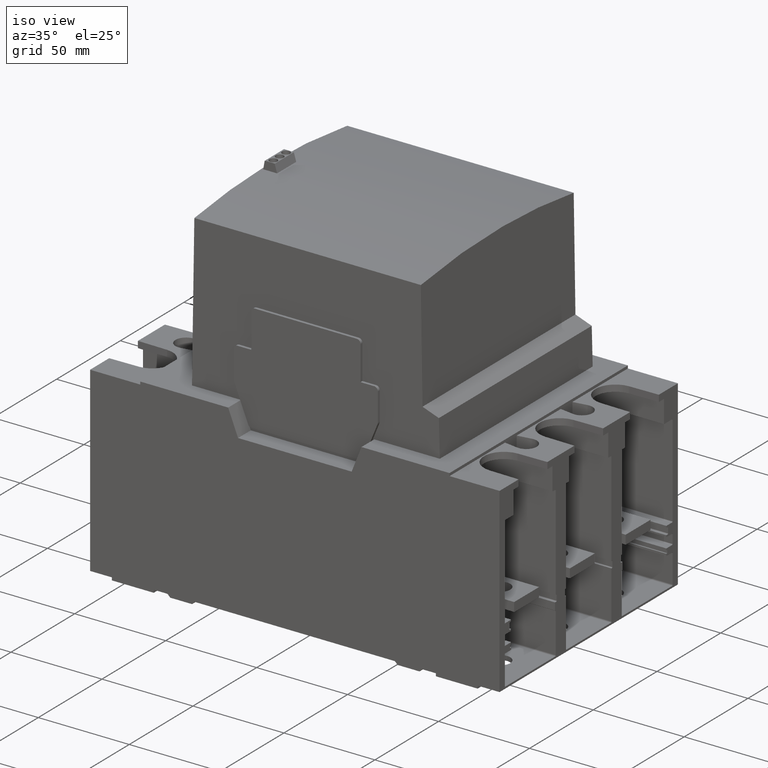
[diagram: clean part render]
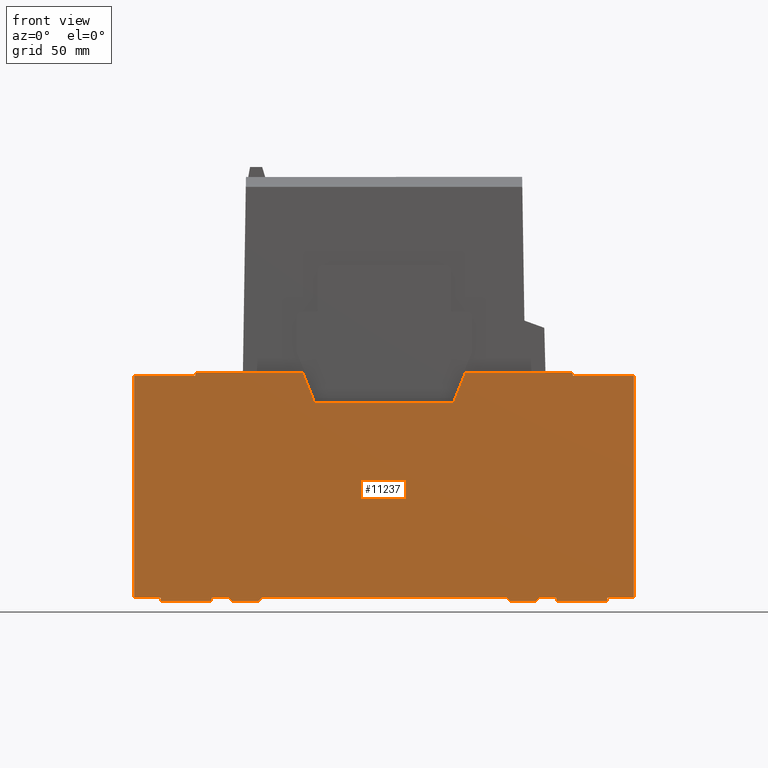
[diagram: tour spotlight — one face highlighted and labeled with its STEP entity id]
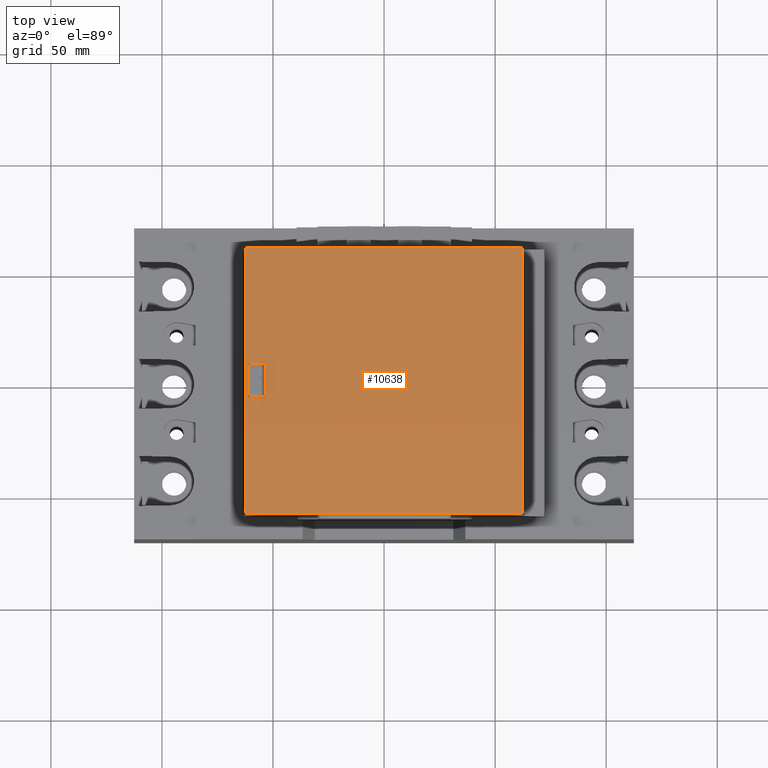
[diagram: tour spotlight — one face highlighted and labeled with its STEP entity id]
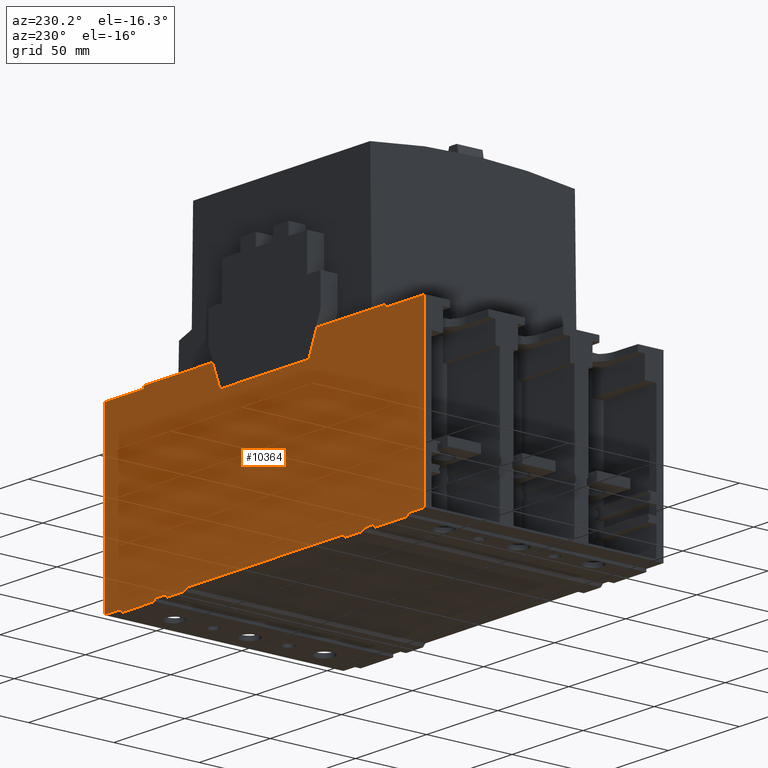
[diagram: tour spotlight — one face highlighted and labeled with its STEP entity id]
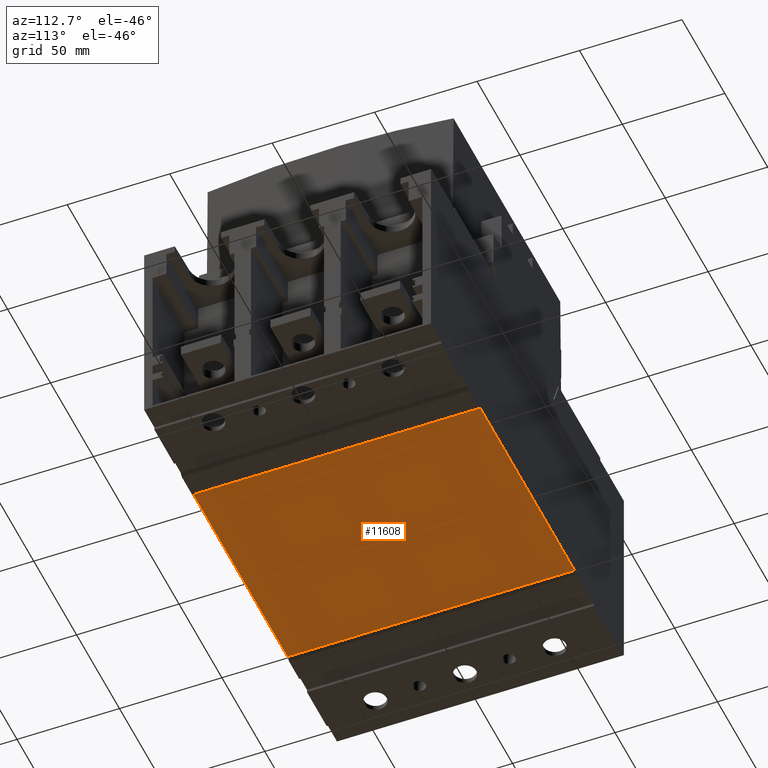
[diagram: tour spotlight — one face highlighted and labeled with its STEP entity id]
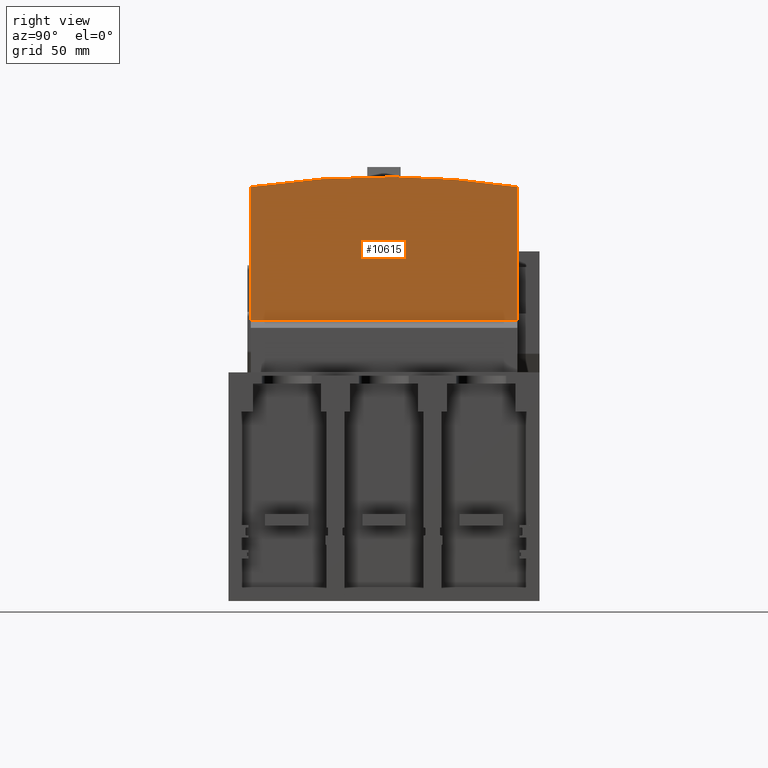
[diagram: tour spotlight — one face highlighted and labeled with its STEP entity id]
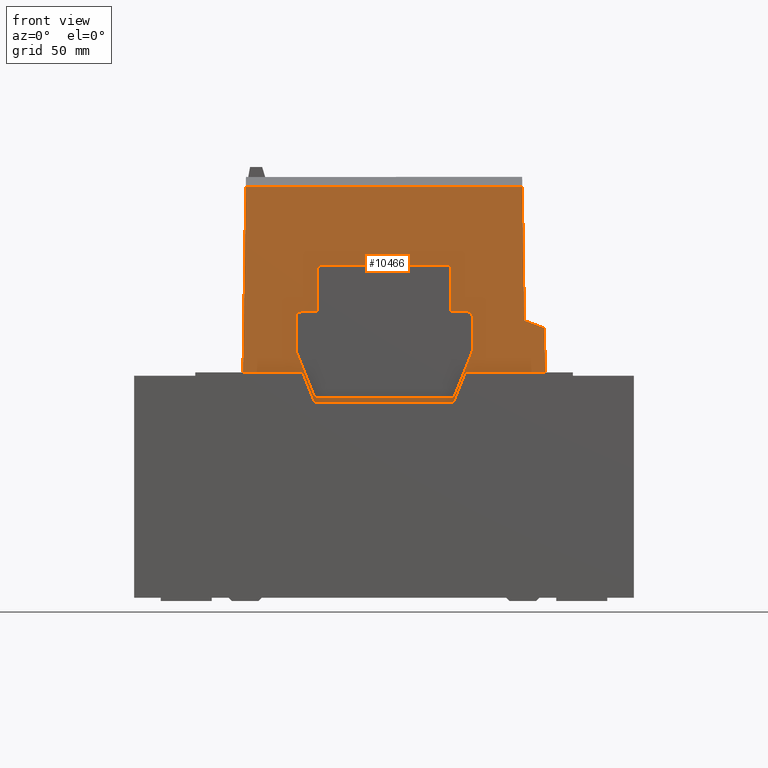
[diagram: tour spotlight — one face highlighted and labeled with its STEP entity id]
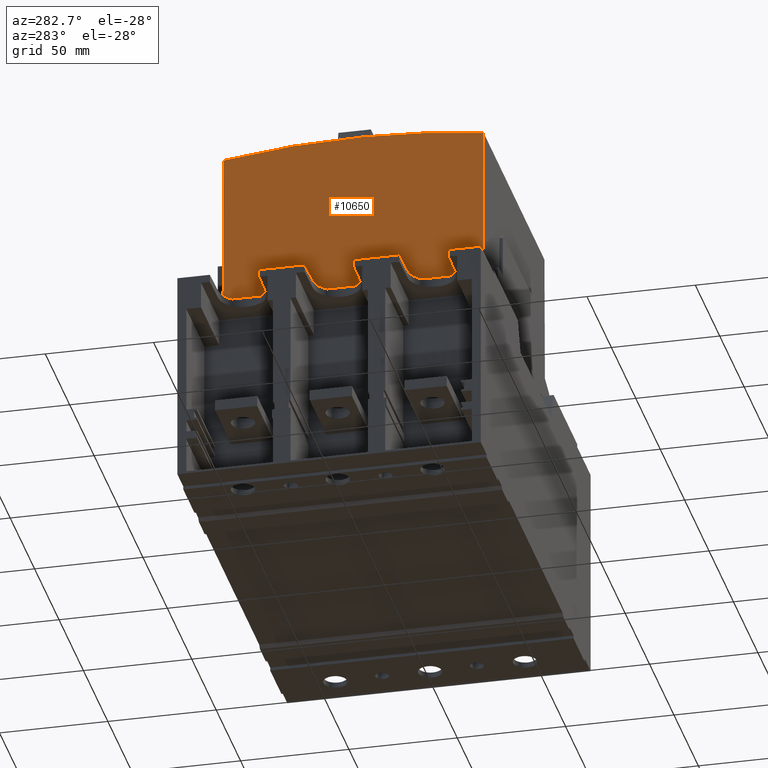
[diagram: tour spotlight — one face highlighted and labeled with its STEP entity id]
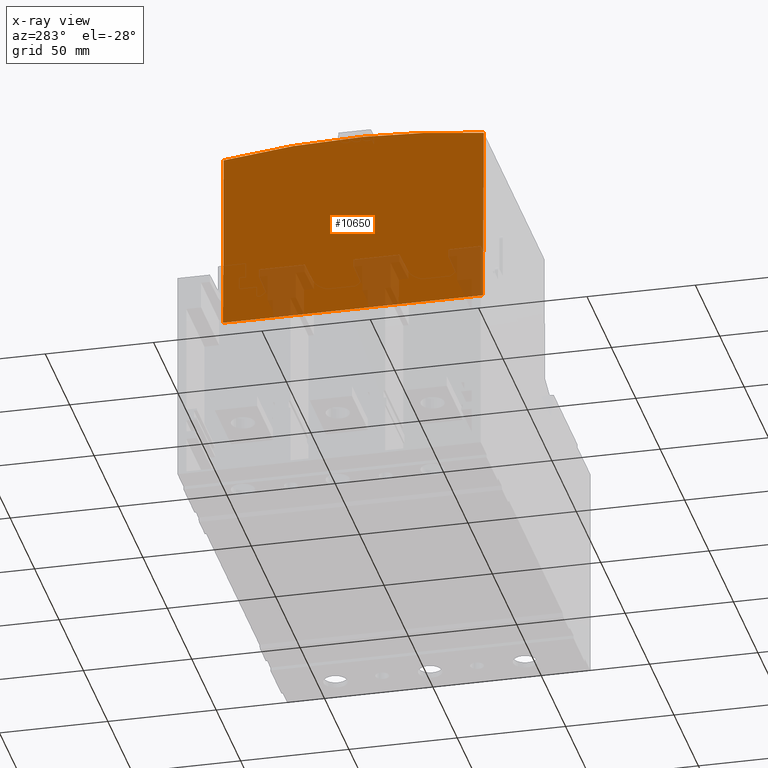
[diagram: x-ray of the same camera — body ghosted, this tour face saturated]
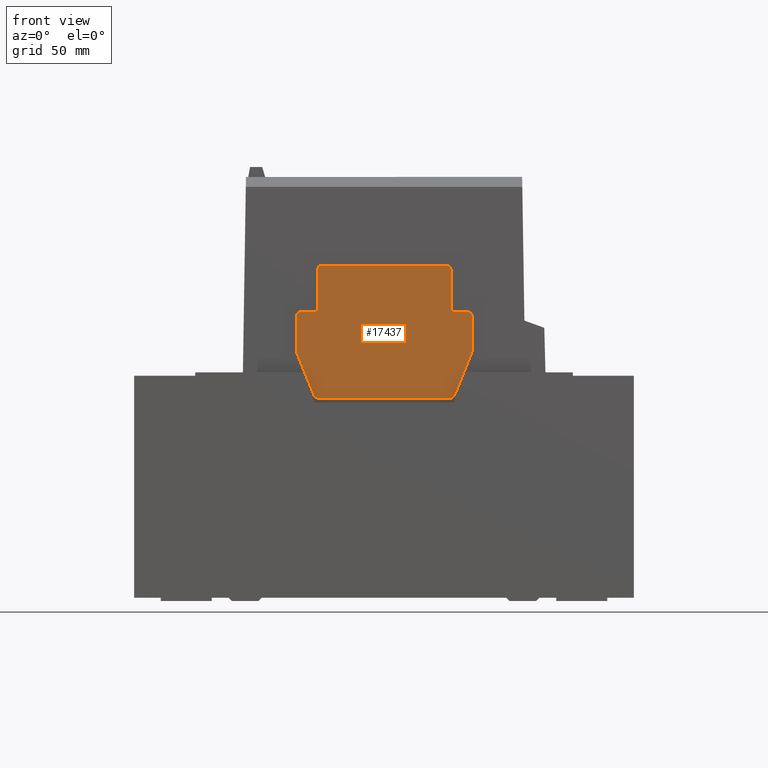
[diagram: tour spotlight — one face highlighted and labeled with its STEP entity id]
A machine part: a face-by-face anatomy tour. The part has 406 B-rep faces; the first image is the clean iso view, then the 8 largest visible faces are spotlighted one at a time (largest first), each with its STEP entity span.

Face 1 — front view, entity #11237. In plain terms, the highlighted planar face has unit normal (0, -1, 0).
Definition (entity closure, byte-faithful):
#212=DIRECTION('',(-1.E0,0.E0,0.E0));
#213=VECTOR('',#212,4.836212561823E1);
#214=CARTESIAN_POINT('',(8.5E1,-7.E1,1.029849074712E2));
#215=LINE('',#214,#213);
#373=DIRECTION('',(-1.E0,0.E0,0.E0));
#374=VECTOR('',#373,4.836212561823E1);
#375=CARTESIAN_POINT('',(-3.663787438177E1,-7.E1,1.029849074712E2));
#376=LINE('',#375,#374);
#1179=DIRECTION('',(3.682621791827E-1,0.E0,-9.297219839197E-1));
#1180=VECTOR('',#1179,1.470332017144E1);
#1181=CARTESIAN_POINT('',(-3.663787438177E1,-7.E1,1.029849074712E2));
#1182=LINE('',#1181,#1180);
#1186=DIRECTION('',(1.E0,0.E0,0.E0));
#1187=VECTOR('',#1186,6.244639530843E1);
#1188=CARTESIAN_POINT('',(-3.122319765421E1,-7.E1,8.931490747116E1));
#1189=LINE('',#1188,#1187);
#1193=DIRECTION('',(3.682621791827E-1,0.E0,9.297219839197E-1));
#1194=VECTOR('',#1193,1.470332017144E1);
#1195=CARTESIAN_POINT('',(3.122319765421E1,-7.E1,8.931490747116E1));
#1196=LINE('',#1195,#1194);
#1200=DIRECTION('',(0.E0,0.E0,1.E0));
#1201=VECTOR('',#1200,1.5E0);
#1202=CARTESIAN_POINT('',(8.5E1,-7.E1,1.014849074712E2));
#1203=LINE('',#1202,#1201);
#1207=DIRECTION('',(-1.E0,0.E0,0.E0));
#1208=VECTOR('',#1207,2.75E1);
#1209=CARTESIAN_POINT('',(1.125E2,-7.E1,1.014849074712E2));
#1210=LINE('',#1209,#1208);
#1214=DIRECTION('',(0.E0,0.E0,1.E0));
#1215=VECTOR('',#1214,9.994999999998E1);
#1216=CARTESIAN_POINT('',(1.125E2,-7.E1,1.534907471179E0));
#1217=LINE('',#1216,#1215);
#1221=DIRECTION('',(1.E0,0.E0,0.E0));
#1222=VECTOR('',#1221,1.2E1);
#1223=CARTESIAN_POINT('',(1.005E2,-7.E1,1.534907471179E0));
#1224=LINE('',#1223,#1222);
#1228=DIRECTION('',(8.726535498385E-3,0.E0,9.999619230642E-1));
#1229=VECTOR('',#1228,1.500057117594E0);
#1230=CARTESIAN_POINT('',(1.004869096983E2,-7.E1,3.490747116305E-2));
#1231=LINE('',#1230,#1229);
#1235=DIRECTION('',(1.E0,0.E0,0.E0));
#1236=VECTOR('',#1235,2.297381939663E1);
#1237=CARTESIAN_POINT('',(7.751309030169E1,-7.E1,3.490747116305E-2));
#1238=LINE('',#1237,#1236);
#1242=DIRECTION('',(8.726535498371E-3,0.E0,-9.999619230642E-1));
#1243=VECTOR('',#1242,1.500057117579E0);
#1244=CARTESIAN_POINT('',(7.75E1,-7.E1,1.534907471163E0));
#1245=LINE('',#1244,#1243);
#1249=DIRECTION('',(1.E0,0.E0,0.E0));
#1250=VECTOR('',#1249,7.5E0);
#1251=CARTESIAN_POINT('',(7.E1,-7.E1,1.534907471163E0));
#1252=LINE('',#1251,#1250);
#1256=DIRECTION('',(7.071067811865E-1,0.E0,7.071067811865E-1));
#1257=VECTOR('',#1256,2.121320343560E0);
#1258=CARTESIAN_POINT('',(6.85E1,-7.E1,3.490747116309E-2));
#1259=LINE('',#1258,#1257);
#1263=DIRECTION('',(1.E0,0.E0,0.E0));
#1264=VECTOR('',#1263,1.2E1);
#1265=CARTESIAN_POINT('',(5.65E1,-7.E1,3.490747116309E-2));
#1266=LINE('',#1265,#1264);
#1270=DIRECTION('',(7.071067811866E-1,0.E0,-7.071067811865E-1));
#1271=VECTOR('',#1270,2.121320343560E0);
#1272=CARTESIAN_POINT('',(5.5E1,-7.E1,1.534907471163E0));
#1273=LINE('',#1272,#1271);
#1277=DIRECTION('',(1.E0,0.E0,0.E0));
#1278=VECTOR('',#1277,1.1E2);
#1279=CARTESIAN_POINT('',(-5.5E1,-7.E1,1.534907471163E0));
#1280=LINE('',#1279,#1278);
#1284=DIRECTION('',(7.071067811866E-1,0.E0,7.071067811865E-1));
#1285=VECTOR('',#1284,2.121320343560E0);
#1286=CARTESIAN_POINT('',(-5.65E1,-7.E1,3.490747116305E-2));
#1287=LINE('',#1286,#1285);
#1291=DIRECTION('',(1.E0,0.E0,0.E0));
#1292=VECTOR('',#1291,1.2E1);
#1293=CARTESIAN_POINT('',(-6.85E1,-7.E1,3.490747116305E-2));
#1294=LINE('',#1293,#1292);
#1298=DIRECTION('',(7.071067811865E-1,0.E0,-7.071067811865E-1));
#1299=VECTOR('',#1298,2.121320343560E0);
#1300=CARTESIAN_POINT('',(-7.E1,-7.E1,1.534907471163E0));
#1301=LINE('',#1300,#1299);
#1305=DIRECTION('',(1.E0,0.E0,0.E0));
#1306=VECTOR('',#1305,7.544181029958E0);
#1307=CARTESIAN_POINT('',(-7.754418102996E1,-7.E1,1.534907471163E0));
#1308=LINE('',#1307,#1306);
#1312=DIRECTION('',(8.726535498371E-3,0.E0,9.999619230642E-1));
#1313=VECTOR('',#1312,1.500057117579E0);
#1314=CARTESIAN_POINT('',(-7.755727133164E1,-7.E1,3.490747116305E-2));
#1315=LINE('',#1314,#1313);
#1319=DIRECTION('',(1.E0,0.E0,0.E0));
#1320=VECTOR('',#1319,2.297381939663E1);
#1321=CARTESIAN_POINT('',(-1.005310907283E2,-7.E1,3.490747116305E-2));
#1322=LINE('',#1321,#1320);
#1326=DIRECTION('',(8.726535498376E-3,0.E0,-9.999619230642E-1));
#1327=VECTOR('',#1326,1.500057117594E0);
#1328=CARTESIAN_POINT('',(-1.005441810300E2,-7.E1,1.534907471179E0));
#1329=LINE('',#1328,#1327);
#1333=DIRECTION('',(1.E0,0.E0,0.E0));
#1334=VECTOR('',#1333,1.2E1);
#1335=CARTESIAN_POINT('',(-1.125441810300E2,-7.E1,1.534907471179E0));
#1336=LINE('',#1335,#1334);
#1340=DIRECTION('',(0.E0,0.E0,-1.E0));
#1341=VECTOR('',#1340,9.994999999998E1);
#1342=CARTESIAN_POINT('',(-1.125441810300E2,-7.E1,1.014849074712E2));
#1343=LINE('',#1342,#1341);
#1347=DIRECTION('',(-1.E0,0.E0,0.E0));
#1348=VECTOR('',#1347,2.754418102996E1);
#1349=CARTESIAN_POINT('',(-8.5E1,-7.E1,1.014849074712E2));
#1350=LINE('',#1349,#1348);
#1354=DIRECTION('',(0.E0,0.E0,-1.E0));
#1355=VECTOR('',#1354,1.5E0);
#1356=CARTESIAN_POINT('',(-8.5E1,-7.E1,1.029849074712E2));
#1357=LINE('',#1356,#1355);
#8882=CARTESIAN_POINT('',(-1.125441810300E2,-7.E1,1.534907471179E0));
#8883=CARTESIAN_POINT('',(-1.005441810300E2,-7.E1,1.534907471179E0));
#8884=VERTEX_POINT('',#8882);
#8885=VERTEX_POINT('',#8883);
#8886=CARTESIAN_POINT('',(-1.005310907283E2,-7.E1,3.490747116305E-2));
#8887=VERTEX_POINT('',#8886);
#8888=CARTESIAN_POINT('',(-7.755727133164E1,-7.E1,3.490747116305E-2));
#8889=VERTEX_POINT('',#8888);
#8890=CARTESIAN_POINT('',(-7.754418102996E1,-7.E1,1.534907471163E0));
#8891=VERTEX_POINT('',#8890);
#8892=CARTESIAN_POINT('',(-7.E1,-7.E1,1.534907471163E0));
#8893=VERTEX_POINT('',#8892);
#8894=CARTESIAN_POINT('',(-6.85E1,-7.E1,3.490747116305E-2));
#8895=VERTEX_POINT('',#8894);
#8896=CARTESIAN_POINT('',(-5.65E1,-7.E1,3.490747116305E-2));
#8897=VERTEX_POINT('',#8896);
#8898=CARTESIAN_POINT('',(-5.5E1,-7.E1,1.534907471163E0));
#8899=VERTEX_POINT('',#8898);
#8900=CARTESIAN_POINT('',(5.5E1,-7.E1,1.534907471163E0));
#8901=VERTEX_POINT('',#8900);
#8902=CARTESIAN_POINT('',(5.65E1,-7.E1,3.490747116309E-2));
#8903=VERTEX_POINT('',#8902);
#8904=CARTESIAN_POINT('',(6.85E1,-7.E1,3.490747116309E-2));
#8905=VERTEX_POINT('',#8904);
#8906=CARTESIAN_POINT('',(7.E1,-7.E1,1.534907471163E0));
#8907=VERTEX_POINT('',#8906);
#8908=CARTESIAN_POINT('',(7.75E1,-7.E1,1.534907471163E0));
#8909=VERTEX_POINT('',#8908);
#8910=CARTESIAN_POINT('',(7.751309030169E1,-7.E1,3.490747116305E-2));
#8911=VERTEX_POINT('',#8910);
#8912=CARTESIAN_POINT('',(1.004869096983E2,-7.E1,3.490747116305E-2));
#8913=VERTEX_POINT('',#8912);
#8914=CARTESIAN_POINT('',(1.005E2,-7.E1,1.534907471179E0));
#8915=VERTEX_POINT('',#8914);
#8916=CARTESIAN_POINT('',(1.125E2,-7.E1,1.534907471179E0));
#8917=VERTEX_POINT('',#8916);
#8918=CARTESIAN_POINT('',(1.125E2,-7.E1,1.014849074712E2));
#8919=VERTEX_POINT('',#8918);
#8920=CARTESIAN_POINT('',(8.5E1,-7.E1,1.014849074712E2));
#8921=VERTEX_POINT('',#8920);
#8922=CARTESIAN_POINT('',(8.5E1,-7.E1,1.029849074712E2));
#8923=VERTEX_POINT('',#8922);
#8924=CARTESIAN_POINT('',(-8.5E1,-7.E1,1.029849074712E2));
#8925=CARTESIAN_POINT('',(-8.5E1,-7.E1,1.014849074712E2));
#8926=VERTEX_POINT('',#8924);
#8927=VERTEX_POINT('',#8925);
#8928=CARTESIAN_POINT('',(-1.125441810300E2,-7.E1,1.014849074712E2));
#8929=VERTEX_POINT('',#8928);
#8938=CARTESIAN_POINT('',(-3.663787438177E1,-7.E1,1.029849074712E2));
#8939=CARTESIAN_POINT('',(-3.122319765421E1,-7.E1,8.931490747116E1));
#8940=VERTEX_POINT('',#8938);
#8941=VERTEX_POINT('',#8939);
#8942=CARTESIAN_POINT('',(3.122319765421E1,-7.E1,8.931490747116E1));
#8943=VERTEX_POINT('',#8942);
#8944=CARTESIAN_POINT('',(3.663787438177E1,-7.E1,1.029849074712E2));
#8945=VERTEX_POINT('',#8944);
#11177=CARTESIAN_POINT('',(0.E0,-7.E1,0.E0));
#11178=DIRECTION('',(0.E0,-1.E0,0.E0));
#11179=DIRECTION('',(1.E0,0.E0,0.E0));
#11180=AXIS2_PLACEMENT_3D('',#11177,#11178,#11179);
#11181=PLANE('',#11180);
#11182=ORIENTED_EDGE('',*,*,#10482,.F.);
#11183=ORIENTED_EDGE('',*,*,#11168,.T.);
#11185=ORIENTED_EDGE('',*,*,#11184,.T.);
#11187=ORIENTED_EDGE('',*,*,#11186,.T.);
#11188=ORIENTED_EDGE('',*,*,#10379,.F.);
#11190=ORIENTED_EDGE('',*,*,#11189,.F.);
#11192=ORIENTED_EDGE('',*,*,#11191,.F.);
#11194=ORIENTED_EDGE('',*,*,#11193,.F.);
#11196=ORIENTED_EDGE('',*,*,#11195,.F.);
#11198=ORIENTED_EDGE('',*,*,#11197,.F.);
#11200=ORIENTED_EDGE('',*,*,#11199,.F.);
#11202=ORIENTED_EDGE('',*,*,#11201,.F.);
#11204=ORIENTED_EDGE('',*,*,#11203,.F.);
#11206=ORIENTED_EDGE('',*,*,#11205,.F.);
#11208=ORIENTED_EDGE('',*,*,#11207,.F.);
#11210=ORIENTED_EDGE('',*,*,#11209,.F.);
#11212=ORIENTED_EDGE('',*,*,#11211,.F.);
#11214=ORIENTED_EDGE('',*,*,#11213,.F.);
#11216=ORIENTED_EDGE('',*,*,#11215,.F.);
#11218=ORIENTED_EDGE('',*,*,#11217,.F.);
#11220=ORIENTED_EDGE('',*,*,#11219,.F.);
#11222=ORIENTED_EDGE('',*,*,#11221,.F.);
#11224=ORIENTED_EDGE('',*,*,#11223,.F.);
#11226=ORIENTED_EDGE('',*,*,#11225,.F.);
#11228=ORIENTED_EDGE('',*,*,#11227,.F.);
#11230=ORIENTED_EDGE('',*,*,#11229,.F.);
#11232=ORIENTED_EDGE('',*,*,#11231,.F.);
#11234=ORIENTED_EDGE('',*,*,#11233,.F.);
#11235=EDGE_LOOP('',(#11182,#11183,#11185,#11187,#11188,#11190,#11192,#11194,
#11196,#11198,#11200,#11202,#11204,#11206,#11208,#11210,#11212,#11214,#11216,
#11218,#11220,#11222,#11224,#11226,#11228,#11230,#11232,#11234));
#11236=FACE_OUTER_BOUND('',#11235,.F.);
#10379=EDGE_CURVE('',#8923,#8945,#215,.T.);
#10482=EDGE_CURVE('',#8940,#8926,#376,.T.);
#11168=EDGE_CURVE('',#8940,#8941,#1182,.T.);
#11184=EDGE_CURVE('',#8941,#8943,#1189,.T.);
#11186=EDGE_CURVE('',#8943,#8945,#1196,.T.);
#11189=EDGE_CURVE('',#8921,#8923,#1203,.T.);
#11191=EDGE_CURVE('',#8919,#8921,#1210,.T.);
#11193=EDGE_CURVE('',#8917,#8919,#1217,.T.);
#11195=EDGE_CURVE('',#8915,#8917,#1224,.T.);
#11197=EDGE_CURVE('',#8913,#8915,#1231,.T.);
#11199=EDGE_CURVE('',#8911,#8913,#1238,.T.);
#11201=EDGE_CURVE('',#8909,#8911,#1245,.T.);
#11203=EDGE_CURVE('',#8907,#8909,#1252,.T.);
#11205=EDGE_CURVE('',#8905,#8907,#1259,.T.);
#11207=EDGE_CURVE('',#8903,#8905,#1266,.T.);
#11209=EDGE_CURVE('',#8901,#8903,#1273,.T.);
#11211=EDGE_CURVE('',#8899,#8901,#1280,.T.);
#11213=EDGE_CURVE('',#8897,#8899,#1287,.T.);
#11215=EDGE_CURVE('',#8895,#8897,#1294,.T.);
#11217=EDGE_CURVE('',#8893,#8895,#1301,.T.);
#11219=EDGE_CURVE('',#8891,#8893,#1308,.T.);
#11221=EDGE_CURVE('',#8889,#8891,#1315,.T.);
#11223=EDGE_CURVE('',#8887,#8889,#1322,.T.);
#11225=EDGE_CURVE('',#8885,#8887,#1329,.T.);
#11227=EDGE_CURVE('',#8884,#8885,#1336,.T.);
#11229=EDGE_CURVE('',#8929,#8884,#1343,.T.);
#11231=EDGE_CURVE('',#8927,#8929,#1350,.T.);
#11233=EDGE_CURVE('',#8926,#8927,#1357,.T.);
#11237=ADVANCED_FACE('',(#11236),#11181,.T.);

Face 2 — top view, entity #10638. In plain terms, the highlighted cylindrical surface (partial cylindrical patch) has radius 400 mm, axis along (1, 0, 0).
Definition (entity closure, byte-faithful):
#597=CARTESIAN_POINT('',(6.224399753027E1,-6.E1,1.864893061369E2));
#598=CARTESIAN_POINT('',(6.219662275394E1,-4.E1,1.895236365614E2));
#599=CARTESIAN_POINT('',(6.215005654927E1,2.842170943040E-14,1.925061783809E2));
#600=CARTESIAN_POINT('',(6.219662275394E1,4.E1,1.895236365614E2));
#601=CARTESIAN_POINT('',(6.224399753027E1,6.E1,1.864893061369E2));
#613=DIRECTION('',(1.E0,0.E0,0.E0));
#614=VECTOR('',#613,1.244879950605E2);
#615=CARTESIAN_POINT('',(-6.224399753027E1,-6.E1,1.864893061369E2));
#616=LINE('',#615,#614);
#620=DIRECTION('',(1.E0,0.E0,0.E0));
#621=VECTOR('',#620,1.244879950605E2);
#622=CARTESIAN_POINT('',(-6.224399753027E1,6.E1,1.864893061369E2));
#623=LINE('',#622,#621);
#627=CARTESIAN_POINT('',(-5.351398476314E1,7.5E0,1.909445887903E2));
#628=CARTESIAN_POINT('',(-5.354211605645E1,2.5E0,1.910383552741E2));
#629=CARTESIAN_POINT('',(-5.354211605645E1,-2.5E0,1.910383552741E2));
#630=CARTESIAN_POINT('',(-5.351398476314E1,-7.5E0,1.909445887903E2));
#635=DIRECTION('',(1.E0,0.E0,0.E0));
#636=VECTOR('',#635,7.634313418741E0);
#637=CARTESIAN_POINT('',(-6.114829818188E1,7.5E0,1.909445887903E2));
#638=LINE('',#637,#636);
#642=CARTESIAN_POINT('',(-6.114829818188E1,7.5E0,1.909445887903E2));
#643=CARTESIAN_POINT('',(-6.113125792376E1,2.5E0,1.910383552741E2));
#644=CARTESIAN_POINT('',(-6.113125792376E1,-2.5E0,1.910383552741E2));
#645=CARTESIAN_POINT('',(-6.114829818188E1,-7.5E0,1.909445887903E2));
#650=DIRECTION('',(1.E0,0.E0,0.E0));
#651=VECTOR('',#650,7.634313418741E0);
#652=CARTESIAN_POINT('',(-6.114829818188E1,-7.5E0,1.909445887903E2));
#653=LINE('',#652,#651);
#664=CARTESIAN_POINT('',(-6.224399753027E1,6.E1,1.864893061369E2));
#665=CARTESIAN_POINT('',(-6.219662275394E1,4.E1,1.895236365614E2));
#666=CARTESIAN_POINT('',(-6.215005654927E1,1.065814103640E-13,
1.925061783809E2));
#667=CARTESIAN_POINT('',(-6.219662275394E1,-4.E1,1.895236365614E2));
#668=CARTESIAN_POINT('',(-6.224399753027E1,-6.E1,1.864893061369E2));
#8978=VERTEX_POINT('',#597);
#8979=VERTEX_POINT('',#601);
#8980=VERTEX_POINT('',#664);
#8981=VERTEX_POINT('',#668);
#10273=VERTEX_POINT('',#627);
#10274=VERTEX_POINT('',#630);
#10275=VERTEX_POINT('',#642);
#10276=VERTEX_POINT('',#645);
#10616=CARTESIAN_POINT('',(-6.218242077190E1,-3.868757080523E-12,
-2.089850925292E2));
#10617=DIRECTION('',(1.E0,0.E0,0.E0));
#10618=DIRECTION('',(0.E0,1.E0,0.E0));
#10619=AXIS2_PLACEMENT_3D('',#10616,#10617,#10618);
#10620=CYLINDRICAL_SURFACE('',#10619,4.000000000003E2);
#10621=ORIENTED_EDGE('',*,*,#10610,.F.);
#10622=ORIENTED_EDGE('',*,*,#10412,.F.);
#10624=ORIENTED_EDGE('',*,*,#10623,.F.);
#10625=ORIENTED_EDGE('',*,*,#10541,.T.);
#10626=EDGE_LOOP('',(#10621,#10622,#10624,#10625));
#10627=FACE_OUTER_BOUND('',#10626,.F.);
#10629=ORIENTED_EDGE('',*,*,#10628,.F.);
#10631=ORIENTED_EDGE('',*,*,#10630,.F.);
#10633=ORIENTED_EDGE('',*,*,#10632,.T.);
#10635=ORIENTED_EDGE('',*,*,#10634,.T.);
#10636=EDGE_LOOP('',(#10629,#10631,#10633,#10635));
#10637=FACE_BOUND('',#10636,.F.);
#602=B_SPLINE_CURVE_WITH_KNOTS('',3,(#597,#598,#599,#600,#601),.UNSPECIFIED.,
.F.,.F.,(4,1,4),(0.E0,5.E-1,1.E0),.UNSPECIFIED.);
#631=B_SPLINE_CURVE_WITH_KNOTS('',3,(#627,#628,#629,#630),.UNSPECIFIED.,.F.,.F.,
(4,4),(0.E0,1.E0),.UNSPECIFIED.);
#646=B_SPLINE_CURVE_WITH_KNOTS('',3,(#642,#643,#644,#645),.UNSPECIFIED.,.F.,.F.,
(4,4),(0.E0,1.E0),.UNSPECIFIED.);
#669=B_SPLINE_CURVE_WITH_KNOTS('',3,(#664,#665,#666,#667,#668),.UNSPECIFIED.,
.F.,.F.,(4,1,4),(0.E0,5.E-1,1.E0),.UNSPECIFIED.);
#10412=EDGE_CURVE('',#8981,#8978,#616,.T.);
#10541=EDGE_CURVE('',#8980,#8979,#623,.T.);
#10610=EDGE_CURVE('',#8978,#8979,#602,.T.);
#10623=EDGE_CURVE('',#8980,#8981,#669,.T.);
#10628=EDGE_CURVE('',#10273,#10274,#631,.T.);
#10630=EDGE_CURVE('',#10275,#10273,#638,.T.);
#10632=EDGE_CURVE('',#10275,#10276,#646,.T.);
#10634=EDGE_CURVE('',#10276,#10274,#653,.T.);
#10638=ADVANCED_FACE('',(#10627,#10637),#10620,.T.);

Face 3 — auxiliary view, entity #10364. In plain terms, the highlighted planar face has unit normal (0, -1, 0).
Definition (entity closure, byte-faithful):
#15=DIRECTION('',(-3.682621791827E-1,0.E0,-9.297219839197E-1));
#16=VECTOR('',#15,1.470332017144E1);
#17=CARTESIAN_POINT('',(3.663787438177E1,7.E1,1.029849074712E2));
#18=LINE('',#17,#16);
#23=DIRECTION('',(-1.E0,0.E0,0.E0));
#24=VECTOR('',#23,6.244639530843E1);
#25=CARTESIAN_POINT('',(3.122319765421E1,7.E1,8.931490747116E1));
#26=LINE('',#25,#24);
#30=DIRECTION('',(-3.682621791827E-1,0.E0,9.297219839197E-1));
#31=VECTOR('',#30,1.470332017144E1);
#32=CARTESIAN_POINT('',(-3.122319765421E1,7.E1,8.931490747116E1));
#33=LINE('',#32,#31);
#37=DIRECTION('',(0.E0,0.E0,-1.E0));
#38=VECTOR('',#37,1.5E0);
#39=CARTESIAN_POINT('',(-8.5E1,7.E1,1.029849074712E2));
#40=LINE('',#39,#38);
#44=DIRECTION('',(-1.E0,0.E0,0.E0));
#45=VECTOR('',#44,2.754418102996E1);
#46=CARTESIAN_POINT('',(-8.5E1,7.E1,1.014849074712E2));
#47=LINE('',#46,#45);
#51=DIRECTION('',(0.E0,0.E0,-1.E0));
#52=VECTOR('',#51,9.994999999998E1);
#53=CARTESIAN_POINT('',(-1.125441810300E2,7.E1,1.014849074712E2));
#54=LINE('',#53,#52);
#58=DIRECTION('',(1.E0,0.E0,0.E0));
#59=VECTOR('',#58,1.2E1);
#60=CARTESIAN_POINT('',(-1.125441810300E2,7.E1,1.534907471179E0));
#61=LINE('',#60,#59);
#65=DIRECTION('',(8.726535498376E-3,0.E0,-9.999619230642E-1));
#66=VECTOR('',#65,1.500057117594E0);
#67=CARTESIAN_POINT('',(-1.005441810300E2,7.E1,1.534907471179E0));
#68=LINE('',#67,#66);
#72=DIRECTION('',(1.E0,0.E0,0.E0));
#73=VECTOR('',#72,2.297381939663E1);
#74=CARTESIAN_POINT('',(-1.005310907283E2,7.E1,3.490747116305E-2));
#75=LINE('',#74,#73);
#79=DIRECTION('',(8.726535498371E-3,0.E0,9.999619230642E-1));
#80=VECTOR('',#79,1.500057117579E0);
#81=CARTESIAN_POINT('',(-7.755727133164E1,7.E1,3.490747116305E-2));
#82=LINE('',#81,#80);
#86=DIRECTION('',(1.E0,0.E0,0.E0));
#87=VECTOR('',#86,7.544181029958E0);
#88=CARTESIAN_POINT('',(-7.754418102996E1,7.E1,1.534907471163E0));
#89=LINE('',#88,#87);
#93=DIRECTION('',(7.071067811865E-1,0.E0,-7.071067811865E-1));
#94=VECTOR('',#93,2.121320343560E0);
#95=CARTESIAN_POINT('',(-7.E1,7.E1,1.534907471163E0));
#96=LINE('',#95,#94);
#100=DIRECTION('',(1.E0,0.E0,0.E0));
#101=VECTOR('',#100,1.2E1);
#102=CARTESIAN_POINT('',(-6.85E1,7.E1,3.490747116305E-2));
#103=LINE('',#102,#101);
#107=DIRECTION('',(7.071067811866E-1,0.E0,7.071067811865E-1));
#108=VECTOR('',#107,2.121320343560E0);
#109=CARTESIAN_POINT('',(-5.65E1,7.E1,3.490747116305E-2));
#110=LINE('',#109,#108);
#114=DIRECTION('',(1.E0,0.E0,0.E0));
#115=VECTOR('',#114,1.1E2);
#116=CARTESIAN_POINT('',(-5.5E1,7.E1,1.534907471163E0));
#117=LINE('',#116,#115);
#121=DIRECTION('',(7.071067811866E-1,0.E0,-7.071067811865E-1));
#122=VECTOR('',#121,2.121320343560E0);
#123=CARTESIAN_POINT('',(5.5E1,7.E1,1.534907471163E0));
#124=LINE('',#123,#122);
#128=DIRECTION('',(1.E0,0.E0,0.E0));
#129=VECTOR('',#128,1.2E1);
#130=CARTESIAN_POINT('',(5.65E1,7.E1,3.490747116309E-2));
#131=LINE('',#130,#129);
#135=DIRECTION('',(7.071067811865E-1,0.E0,7.071067811865E-1));
#136=VECTOR('',#135,2.121320343560E0);
#137=CARTESIAN_POINT('',(6.85E1,7.E1,3.490747116309E-2));
#138=LINE('',#137,#136);
#142=DIRECTION('',(1.E0,0.E0,0.E0));
#143=VECTOR('',#142,7.5E0);
#144=CARTESIAN_POINT('',(7.E1,7.E1,1.534907471163E0));
#145=LINE('',#144,#143);
#149=DIRECTION('',(8.726535498371E-3,0.E0,-9.999619230642E-1));
#150=VECTOR('',#149,1.500057117579E0);
#151=CARTESIAN_POINT('',(7.75E1,7.E1,1.534907471163E0));
#152=LINE('',#151,#150);
#156=DIRECTION('',(1.E0,0.E0,0.E0));
#157=VECTOR('',#156,2.297381939663E1);
#158=CARTESIAN_POINT('',(7.751309030169E1,7.E1,3.490747116305E-2));
#159=LINE('',#158,#157);
#163=DIRECTION('',(8.726535498385E-3,0.E0,9.999619230642E-1));
#164=VECTOR('',#163,1.500057117594E0);
#165=CARTESIAN_POINT('',(1.004869096983E2,7.E1,3.490747116305E-2));
#166=LINE('',#165,#164);
#170=DIRECTION('',(1.E0,0.E0,0.E0));
#171=VECTOR('',#170,1.2E1);
#172=CARTESIAN_POINT('',(1.005E2,7.E1,1.534907471179E0));
#173=LINE('',#172,#171);
#177=DIRECTION('',(0.E0,0.E0,1.E0));
#178=VECTOR('',#177,9.994999999998E1);
#179=CARTESIAN_POINT('',(1.125E2,7.E1,1.534907471179E0));
#180=LINE('',#179,#178);
#184=DIRECTION('',(-1.E0,0.E0,0.E0));
#185=VECTOR('',#184,2.75E1);
#186=CARTESIAN_POINT('',(1.125E2,7.E1,1.014849074712E2));
#187=LINE('',#186,#185);
#191=DIRECTION('',(0.E0,0.E0,1.E0));
#192=VECTOR('',#191,1.5E0);
#193=CARTESIAN_POINT('',(8.5E1,7.E1,1.014849074712E2));
#194=LINE('',#193,#192);
#198=DIRECTION('',(1.E0,0.E0,0.E0));
#199=VECTOR('',#198,4.836212561823E1);
#200=CARTESIAN_POINT('',(3.663787438177E1,7.E1,1.029849074712E2));
#201=LINE('',#200,#199);
#352=DIRECTION('',(1.E0,0.E0,0.E0));
#353=VECTOR('',#352,4.836212561823E1);
#354=CARTESIAN_POINT('',(-8.5E1,7.E1,1.029849074712E2));
#355=LINE('',#354,#353);
#8834=CARTESIAN_POINT('',(-1.125441810300E2,7.E1,1.534907471179E0));
#8835=CARTESIAN_POINT('',(-1.005441810300E2,7.E1,1.534907471179E0));
#8836=VERTEX_POINT('',#8834);
#8837=VERTEX_POINT('',#8835);
#8838=CARTESIAN_POINT('',(-1.005310907283E2,7.E1,3.490747116305E-2));
#8839=VERTEX_POINT('',#8838);
#8840=CARTESIAN_POINT('',(-7.755727133164E1,7.E1,3.490747116305E-2));
#8841=VERTEX_POINT('',#8840);
#8842=CARTESIAN_POINT('',(-7.754418102996E1,7.E1,1.534907471163E0));
#8843=VERTEX_POINT('',#8842);
#8844=CARTESIAN_POINT('',(-7.E1,7.E1,1.534907471163E0));
#8845=VERTEX_POINT('',#8844);
#8846=CARTESIAN_POINT('',(-6.85E1,7.E1,3.490747116305E-2));
#8847=VERTEX_POINT('',#8846);
#8848=CARTESIAN_POINT('',(-5.65E1,7.E1,3.490747116305E-2));
#8849=VERTEX_POINT('',#8848);
#8850=CARTESIAN_POINT('',(-5.5E1,7.E1,1.534907471163E0));
#8851=VERTEX_POINT('',#8850);
#8852=CARTESIAN_POINT('',(5.5E1,7.E1,1.534907471163E0));
#8853=VERTEX_POINT('',#8852);
#8854=CARTESIAN_POINT('',(5.65E1,7.E1,3.490747116309E-2));
#8855=VERTEX_POINT('',#8854);
#8856=CARTESIAN_POINT('',(6.85E1,7.E1,3.490747116309E-2));
#8857=VERTEX_POINT('',#8856);
#8858=CARTESIAN_POINT('',(7.E1,7.E1,1.534907471163E0));
#8859=VERTEX_POINT('',#8858);
#8860=CARTESIAN_POINT('',(7.75E1,7.E1,1.534907471163E0));
#8861=VERTEX_POINT('',#8860);
#8862=CARTESIAN_POINT('',(7.751309030169E1,7.E1,3.490747116305E-2));
#8863=VERTEX_POINT('',#8862);
#8864=CARTESIAN_POINT('',(1.004869096983E2,7.E1,3.490747116305E-2));
#8865=VERTEX_POINT('',#8864);
#8866=CARTESIAN_POINT('',(1.005E2,7.E1,1.534907471179E0));
#8867=VERTEX_POINT('',#8866);
#8868=CARTESIAN_POINT('',(1.125E2,7.E1,1.534907471179E0));
#8869=VERTEX_POINT('',#8868);
#8870=CARTESIAN_POINT('',(1.125E2,7.E1,1.014849074712E2));
#8871=VERTEX_POINT('',#8870);
#8872=CARTESIAN_POINT('',(8.5E1,7.E1,1.014849074712E2));
#8873=VERTEX_POINT('',#8872);
#8874=CARTESIAN_POINT('',(8.5E1,7.E1,1.029849074712E2));
#8875=VERTEX_POINT('',#8874);
#8876=CARTESIAN_POINT('',(-8.5E1,7.E1,1.029849074712E2));
#8877=CARTESIAN_POINT('',(-8.5E1,7.E1,1.014849074712E2));
#8878=VERTEX_POINT('',#8876);
#8879=VERTEX_POINT('',#8877);
#8880=CARTESIAN_POINT('',(-1.125441810300E2,7.E1,1.014849074712E2));
#8881=VERTEX_POINT('',#8880);
#8958=CARTESIAN_POINT('',(3.663787438177E1,7.E1,1.029849074712E2));
#8959=CARTESIAN_POINT('',(3.122319765421E1,7.E1,8.931490747116E1));
#8960=VERTEX_POINT('',#8958);
#8961=VERTEX_POINT('',#8959);
#8962=CARTESIAN_POINT('',(-3.122319765421E1,7.E1,8.931490747116E1));
#8963=VERTEX_POINT('',#8962);
#8964=CARTESIAN_POINT('',(-3.663787438177E1,7.E1,1.029849074712E2));
#8965=VERTEX_POINT('',#8964);
#10301=CARTESIAN_POINT('',(0.E0,7.E1,0.E0));
#10302=DIRECTION('',(0.E0,-1.E0,0.E0));
#10303=DIRECTION('',(1.E0,0.E0,0.E0));
#10304=AXIS2_PLACEMENT_3D('',#10301,#10302,#10303);
#10305=PLANE('',#10304);
#10307=ORIENTED_EDGE('',*,*,#10306,.F.);
#10309=ORIENTED_EDGE('',*,*,#10308,.T.);
#10311=ORIENTED_EDGE('',*,*,#10310,.T.);
#10313=ORIENTED_EDGE('',*,*,#10312,.T.);
#10315=ORIENTED_EDGE('',*,*,#10314,.F.);
#10317=ORIENTED_EDGE('',*,*,#10316,.T.);
#10319=ORIENTED_EDGE('',*,*,#10318,.T.);
#10321=ORIENTED_EDGE('',*,*,#10320,.T.);
#10323=ORIENTED_EDGE('',*,*,#10322,.T.);
#10325=ORIENTED_EDGE('',*,*,#10324,.T.);
#10327=ORIENTED_EDGE('',*,*,#10326,.T.);
#10329=ORIENTED_EDGE('',*,*,#10328,.T.);
#10331=ORIENTED_EDGE('',*,*,#10330,.T.);
#10333=ORIENTED_EDGE('',*,*,#10332,.T.);
#10335=ORIENTED_EDGE('',*,*,#10334,.T.);
#10337=ORIENTED_EDGE('',*,*,#10336,.T.);
#10339=ORIENTED_EDGE('',*,*,#10338,.T.);
#10341=ORIENTED_EDGE('',*,*,#10340,.T.);
#10343=ORIENTED_EDGE('',*,*,#10342,.T.);
#10345=ORIENTED_EDGE('',*,*,#10344,.T.);
#10347=ORIENTED_EDGE('',*,*,#10346,.T.);
#10349=ORIENTED_EDGE('',*,*,#10348,.T.);
#10351=ORIENTED_EDGE('',*,*,#10350,.T.);
#10353=ORIENTED_EDGE('',*,*,#10352,.T.);
#10355=ORIENTED_EDGE('',*,*,#10354,.T.);
#10357=ORIENTED_EDGE('',*,*,#10356,.T.);
#10359=ORIENTED_EDGE('',*,*,#10358,.T.);
#10361=ORIENTED_EDGE('',*,*,#10360,.T.);
#10362=EDGE_LOOP('',(#10307,#10309,#10311,#10313,#10315,#10317,#10319,#10321,
#10323,#10325,#10327,#10329,#10331,#10333,#10335,#10337,#10339,#10341,#10343,
#10345,#10347,#10349,#10351,#10353,#10355,#10357,#10359,#10361));
#10363=FACE_OUTER_BOUND('',#10362,.F.);
#10306=EDGE_CURVE('',#8960,#8875,#201,.T.);
#10308=EDGE_CURVE('',#8960,#8961,#18,.T.);
#10310=EDGE_CURVE('',#8961,#8963,#26,.T.);
#10312=EDGE_CURVE('',#8963,#8965,#33,.T.);
#10314=EDGE_CURVE('',#8878,#8965,#355,.T.);
#10316=EDGE_CURVE('',#8878,#8879,#40,.T.);
#10318=EDGE_CURVE('',#8879,#8881,#47,.T.);
#10320=EDGE_CURVE('',#8881,#8836,#54,.T.);
#10322=EDGE_CURVE('',#8836,#8837,#61,.T.);
#10324=EDGE_CURVE('',#8837,#8839,#68,.T.);
#10326=EDGE_CURVE('',#8839,#8841,#75,.T.);
#10328=EDGE_CURVE('',#8841,#8843,#82,.T.);
#10330=EDGE_CURVE('',#8843,#8845,#89,.T.);
#10332=EDGE_CURVE('',#8845,#8847,#96,.T.);
#10334=EDGE_CURVE('',#8847,#8849,#103,.T.);
#10336=EDGE_CURVE('',#8849,#8851,#110,.T.);
#10338=EDGE_CURVE('',#8851,#8853,#117,.T.);
#10340=EDGE_CURVE('',#8853,#8855,#124,.T.);
#10342=EDGE_CURVE('',#8855,#8857,#131,.T.);
#10344=EDGE_CURVE('',#8857,#8859,#138,.T.);
#10346=EDGE_CURVE('',#8859,#8861,#145,.T.);
#10348=EDGE_CURVE('',#8861,#8863,#152,.T.);
#10350=EDGE_CURVE('',#8863,#8865,#159,.T.);
#10352=EDGE_CURVE('',#8865,#8867,#166,.T.);
#10354=EDGE_CURVE('',#8867,#8869,#173,.T.);
#10356=EDGE_CURVE('',#8869,#8871,#180,.T.);
#10358=EDGE_CURVE('',#8871,#8873,#187,.T.);
#10360=EDGE_CURVE('',#8873,#8875,#194,.T.);
#10364=ADVANCED_FACE('',(#10363),#10305,.F.);

Face 4 — auxiliary view, entity #11608. In plain terms, the highlighted planar face has unit normal (0, 0, -1).
Definition (entity closure, byte-faithful):
#114=DIRECTION('',(1.E0,0.E0,0.E0));
#115=VECTOR('',#114,1.1E2);
#116=CARTESIAN_POINT('',(-5.5E1,7.E1,1.534907471163E0));
#117=LINE('',#116,#115);
#1277=DIRECTION('',(1.E0,0.E0,0.E0));
#1278=VECTOR('',#1277,1.1E2);
#1279=CARTESIAN_POINT('',(-5.5E1,-7.E1,1.534907471163E0));
#1280=LINE('',#1279,#1278);
#1809=DIRECTION('',(0.E0,-1.E0,0.E0));
#1810=VECTOR('',#1809,1.4E2);
#1811=CARTESIAN_POINT('',(5.5E1,7.E1,1.534907471163E0));
#1812=LINE('',#1811,#1810);
#1816=DIRECTION('',(0.E0,-1.E0,0.E0));
#1817=VECTOR('',#1816,1.4E2);
#1818=CARTESIAN_POINT('',(-5.5E1,7.E1,1.534907471163E0));
#1819=LINE('',#1818,#1817);
#8850=CARTESIAN_POINT('',(-5.5E1,7.E1,1.534907471163E0));
#8851=VERTEX_POINT('',#8850);
#8852=CARTESIAN_POINT('',(5.5E1,7.E1,1.534907471163E0));
#8853=VERTEX_POINT('',#8852);
#8898=CARTESIAN_POINT('',(-5.5E1,-7.E1,1.534907471163E0));
#8899=VERTEX_POINT('',#8898);
#8900=CARTESIAN_POINT('',(5.5E1,-7.E1,1.534907471163E0));
#8901=VERTEX_POINT('',#8900);
#11596=CARTESIAN_POINT('',(-5.5E1,7.E1,1.534907471163E0));
#11597=DIRECTION('',(0.E0,0.E0,-1.E0));
#11598=DIRECTION('',(1.E0,0.E0,0.E0));
#11599=AXIS2_PLACEMENT_3D('',#11596,#11597,#11598);
#11600=PLANE('',#11599);
#11601=ORIENTED_EDGE('',*,*,#10338,.F.);
#11603=ORIENTED_EDGE('',*,*,#11602,.T.);
#11604=ORIENTED_EDGE('',*,*,#11211,.T.);
#11605=ORIENTED_EDGE('',*,*,#11589,.F.);
#11606=EDGE_LOOP('',(#11601,#11603,#11604,#11605));
#11607=FACE_OUTER_BOUND('',#11606,.F.);
#10338=EDGE_CURVE('',#8851,#8853,#117,.T.);
#11211=EDGE_CURVE('',#8899,#8901,#1280,.T.);
#11589=EDGE_CURVE('',#8853,#8901,#1812,.T.);
#11602=EDGE_CURVE('',#8851,#8899,#1819,.T.);
#11608=ADVANCED_FACE('',(#11607),#11600,.T.);

Face 5 — right view, entity #10615. In plain terms, the highlighted planar face has unit normal (0.9999, 0, 0.0156).
Definition (entity closure, byte-faithful):
#583=DIRECTION('',(0.E0,-1.E0,0.E0));
#584=VECTOR('',#583,1.2E2);
#585=CARTESIAN_POINT('',(6.318378314518E1,6.E1,1.262965135772E2));
#586=LINE('',#585,#584);
#590=DIRECTION('',(-1.561102339983E-2,0.E0,9.998781405493E-1));
#591=VECTOR('',#590,6.020012851431E1);
#592=CARTESIAN_POINT('',(6.318378314518E1,-6.E1,1.262965135772E2));
#593=LINE('',#592,#591);
#597=CARTESIAN_POINT('',(6.224399753027E1,-6.E1,1.864893061369E2));
#598=CARTESIAN_POINT('',(6.219662275394E1,-4.E1,1.895236365614E2));
#599=CARTESIAN_POINT('',(6.215005654927E1,2.842170943040E-14,1.925061783809E2));
#600=CARTESIAN_POINT('',(6.219662275394E1,4.E1,1.895236365614E2));
#601=CARTESIAN_POINT('',(6.224399753027E1,6.E1,1.864893061369E2));
#606=DIRECTION('',(-1.561102339983E-2,0.E0,9.998781405493E-1));
#607=VECTOR('',#606,6.020012851431E1);
#608=CARTESIAN_POINT('',(6.318378314518E1,6.E1,1.262965135772E2));
#609=LINE('',#608,#607);
#8972=CARTESIAN_POINT('',(6.318378314518E1,6.E1,1.262965135772E2));
#8973=CARTESIAN_POINT('',(6.318378314518E1,-6.E1,1.262965135772E2));
#8974=VERTEX_POINT('',#8972);
#8975=VERTEX_POINT('',#8973);
#8978=VERTEX_POINT('',#597);
#8979=VERTEX_POINT('',#601);
#10603=CARTESIAN_POINT('',(6.318378314518E1,7.E1,1.262965135772E2));
#10604=DIRECTION('',(9.998781405493E-1,0.E0,1.561102339983E-2));
#10605=DIRECTION('',(-1.561102339983E-2,0.E0,9.998781405493E-1));
#10606=AXIS2_PLACEMENT_3D('',#10603,#10604,#10605);
#10607=PLANE('',#10606);
#10608=ORIENTED_EDGE('',*,*,#10597,.T.);
#10609=ORIENTED_EDGE('',*,*,#10414,.T.);
#10611=ORIENTED_EDGE('',*,*,#10610,.T.);
#10612=ORIENTED_EDGE('',*,*,#10539,.F.);
#10613=EDGE_LOOP('',(#10608,#10609,#10611,#10612));
#10614=FACE_OUTER_BOUND('',#10613,.F.);
#602=B_SPLINE_CURVE_WITH_KNOTS('',3,(#597,#598,#599,#600,#601),.UNSPECIFIED.,
.F.,.F.,(4,1,4),(0.E0,5.E-1,1.E0),.UNSPECIFIED.);
#10414=EDGE_CURVE('',#8975,#8978,#593,.T.);
#10539=EDGE_CURVE('',#8974,#8979,#609,.T.);
#10597=EDGE_CURVE('',#8974,#8975,#586,.T.);
#10610=EDGE_CURVE('',#8978,#8979,#602,.T.);
#10615=ADVANCED_FACE('',(#10614),#10607,.T.);

Face 6 — front view, entity #10466. In plain terms, the highlighted planar face has unit normal (0, 1, 0).
Definition (entity closure, byte-faithful):
#233=DIRECTION('',(-2.617694830787E-2,0.E0,9.996573249756E-1));
#234=VECTOR('',#233,2.005687298944E1);
#235=CARTESIAN_POINT('',(7.267E1,-6.E1,1.029849074712E2));
#236=LINE('',#235,#234);
#247=DIRECTION('',(1.E0,0.E0,0.E0));
#248=VECTOR('',#247,2.690987114407E1);
#249=CARTESIAN_POINT('',(-6.354774552584E1,-6.E1,1.029849074712E2));
#250=LINE('',#249,#248);
#254=DIRECTION('',(1.E0,0.E0,0.E0));
#255=VECTOR('',#254,3.603212561823E1);
#256=CARTESIAN_POINT('',(3.663787438177E1,-6.E1,1.029849074712E2));
#257=LINE('',#256,#255);
#261=DIRECTION('',(3.682621791827E-1,0.E0,9.297219839197E-1));
#262=VECTOR('',#261,1.470332017144E1);
#263=CARTESIAN_POINT('',(3.122319765421E1,-6.E1,8.931490747116E1));
#264=LINE('',#263,#262);
#268=DIRECTION('',(1.E0,0.E0,0.E0));
#269=VECTOR('',#268,6.244639530843E1);
#270=CARTESIAN_POINT('',(-3.122319765421E1,-6.E1,8.931490747116E1));
#271=LINE('',#270,#269);
#275=DIRECTION('',(3.682621791827E-1,0.E0,-9.297219839197E-1));
#276=VECTOR('',#275,1.470332017144E1);
#277=CARTESIAN_POINT('',(-3.663787438177E1,-6.E1,1.029849074712E2));
#278=LINE('',#277,#276);
#282=DIRECTION('',(0.E0,0.E0,1.E0));
#283=VECTOR('',#282,1.9E1);
#284=CARTESIAN_POINT('',(3.012581064386E1,-6.E1,1.302261017874E2));
#285=LINE('',#284,#283);
#289=DIRECTION('',(-1.E0,0.E0,0.E0));
#290=VECTOR('',#289,5.605162128773E1);
#291=CARTESIAN_POINT('',(2.812581064386E1,-6.E1,1.512261017874E2));
#292=LINE('',#291,#290);
#296=DIRECTION('',(0.E0,0.E0,-1.E0));
#297=VECTOR('',#296,1.9E1);
#298=CARTESIAN_POINT('',(-2.992581064386E1,-6.E1,1.492261017874E2));
#299=LINE('',#298,#297);
#303=DIRECTION('',(-1.E0,0.E0,0.E0));
#304=VECTOR('',#303,7.537007573164E0);
#305=CARTESIAN_POINT('',(-2.992581064386E1,-6.E1,1.302261017874E2));
#306=LINE('',#305,#304);
#310=DIRECTION('',(0.E0,0.E0,-1.E0));
#311=VECTOR('',#310,1.561748593189E1);
#312=CARTESIAN_POINT('',(-3.946281821703E1,-6.E1,1.282261017874E2));
#313=LINE('',#312,#311);
#317=DIRECTION('',(3.746065934159E-1,0.E0,-9.271838545668E-1));
#318=VECTOR('',#317,2.066432917436E1);
#319=CARTESIAN_POINT('',(-3.931718592616E1,-6.E1,1.118594026687E2));
#320=LINE('',#319,#318);
#324=DIRECTION('',(1.E0,0.E0,0.E0));
#325=VECTOR('',#324,5.964364851959E1);
#326=CARTESIAN_POINT('',(-2.972182425980E1,-6.E1,9.144898347961E1));
#327=LINE('',#326,#325);
#331=DIRECTION('',(3.746065934159E-1,0.E0,9.271838545668E-1));
#332=VECTOR('',#331,2.066432917436E1);
#333=CARTESIAN_POINT('',(3.177619196893E1,-6.E1,9.269977029277E1));
#334=LINE('',#333,#332);
#338=DIRECTION('',(0.E0,0.E0,1.E0));
#339=VECTOR('',#338,1.561748593189E1);
#340=CARTESIAN_POINT('',(3.966281821703E1,-6.E1,1.126086158555E2));
#341=LINE('',#340,#339);
#345=DIRECTION('',(-1.E0,0.E0,0.E0));
#346=VECTOR('',#345,7.537007573164E0);
#347=CARTESIAN_POINT('',(3.766281821703E1,-6.E1,1.302261017874E2));
#348=LINE('',#347,#346);
#569=DIRECTION('',(-9.396926207859E-1,0.E0,3.420201433257E-1));
#570=VECTOR('',#569,9.536298284292E0);
#571=CARTESIAN_POINT('',(7.214497227254E1,-6.E1,1.230349074712E2));
#572=LINE('',#571,#570);
#590=DIRECTION('',(-1.561102339983E-2,0.E0,9.998781405493E-1));
#591=VECTOR('',#590,6.020012851431E1);
#592=CARTESIAN_POINT('',(6.318378314518E1,-6.E1,1.262965135772E2));
#593=LINE('',#592,#591);
#597=CARTESIAN_POINT('',(6.224399753027E1,-6.E1,1.864893061369E2));
#613=DIRECTION('',(1.E0,0.E0,0.E0));
#614=VECTOR('',#613,1.244879950605E2);
#615=CARTESIAN_POINT('',(-6.224399753027E1,-6.E1,1.864893061369E2));
#616=LINE('',#615,#614);
#668=CARTESIAN_POINT('',(-6.224399753027E1,-6.E1,1.864893061369E2));
#673=DIRECTION('',(1.561102339983E-2,0.E0,9.998781405493E-1));
#674=VECTOR('',#673,8.351457570603E1);
#675=CARTESIAN_POINT('',(-6.354774552584E1,-6.E1,1.029849074712E2));
#676=LINE('',#675,#674);
#8524=CARTESIAN_POINT('',(2.812581064386E1,-6.E1,1.492261017874E2));
#8525=DIRECTION('',(0.E0,1.E0,0.E0));
#8526=DIRECTION('',(0.E0,0.E0,1.E0));
#8527=AXIS2_PLACEMENT_3D('',#8524,#8525,#8526);
#8666=CARTESIAN_POINT('',(-2.792581064386E1,-6.E1,1.492261017874E2));
#8667=DIRECTION('',(0.E0,1.E0,0.E0));
#8668=DIRECTION('',(-1.E0,0.E0,1.421085471520E-14));
#8669=AXIS2_PLACEMENT_3D('',#8666,#8667,#8668);
#8709=CARTESIAN_POINT('',(-3.746281821703E1,-6.E1,1.282261017874E2));
#8710=DIRECTION('',(0.E0,1.E0,0.E0));
#8711=DIRECTION('',(-1.E0,0.E0,0.E0));
#8712=AXIS2_PLACEMENT_3D('',#8709,#8710,#8711);
#8731=CARTESIAN_POINT('',(-3.746281821703E1,-6.E1,1.126086158555E2));
#8732=DIRECTION('',(0.E0,1.E0,0.E0));
#8733=DIRECTION('',(-9.271838545668E-1,0.E0,-3.746065934159E-1));
#8734=AXIS2_PLACEMENT_3D('',#8731,#8732,#8733);
#8753=CARTESIAN_POINT('',(-2.972182425980E1,-6.E1,9.344898347961E1));
#8754=DIRECTION('',(0.E0,1.E0,0.E0));
#8755=DIRECTION('',(0.E0,0.E0,-1.E0));
#8756=AXIS2_PLACEMENT_3D('',#8753,#8754,#8755);
#8775=CARTESIAN_POINT('',(2.992182425980E1,-6.E1,9.344898347961E1));
#8776=DIRECTION('',(0.E0,1.E0,0.E0));
#8777=DIRECTION('',(9.271838545668E-1,0.E0,-3.746065934159E-1));
#8778=AXIS2_PLACEMENT_3D('',#8775,#8776,#8777);
#8797=CARTESIAN_POINT('',(3.766281821703E1,-6.E1,1.126086158555E2));
#8798=DIRECTION('',(0.E0,1.E0,0.E0));
#8799=DIRECTION('',(1.E0,0.E0,0.E0));
#8800=AXIS2_PLACEMENT_3D('',#8797,#8798,#8799);
#8819=CARTESIAN_POINT('',(3.766281821703E1,-6.E1,1.282261017874E2));
#8820=DIRECTION('',(0.E0,1.E0,0.E0));
#8821=DIRECTION('',(0.E0,0.E0,1.E0));
#8822=AXIS2_PLACEMENT_3D('',#8819,#8820,#8821);
#8930=CARTESIAN_POINT('',(-3.663787438177E1,-6.E1,1.029849074712E2));
#8931=CARTESIAN_POINT('',(-3.122319765421E1,-6.E1,8.931490747116E1));
#8932=VERTEX_POINT('',#8930);
#8933=VERTEX_POINT('',#8931);
#8934=CARTESIAN_POINT('',(3.122319765421E1,-6.E1,8.931490747116E1));
#8935=VERTEX_POINT('',#8934);
#8936=CARTESIAN_POINT('',(3.663787438177E1,-6.E1,1.029849074712E2));
#8937=VERTEX_POINT('',#8936);
#8946=CARTESIAN_POINT('',(-6.354774552584E1,-6.E1,1.029849074712E2));
#8947=VERTEX_POINT('',#8946);
#8948=CARTESIAN_POINT('',(7.267E1,-6.E1,1.029849074712E2));
#8949=VERTEX_POINT('',#8948);
#8969=CARTESIAN_POINT('',(7.214497227254E1,-6.E1,1.230349074712E2));
#8971=VERTEX_POINT('',#8969);
#8973=CARTESIAN_POINT('',(6.318378314518E1,-6.E1,1.262965135772E2));
#8975=VERTEX_POINT('',#8973);
#8978=VERTEX_POINT('',#597);
#8981=VERTEX_POINT('',#668);
#9054=CARTESIAN_POINT('',(3.012581064386E1,-6.E1,1.302261017874E2));
#9056=VERTEX_POINT('',#9054);
#9058=CARTESIAN_POINT('',(-2.992581064386E1,-6.E1,1.302261017874E2));
#9060=VERTEX_POINT('',#9058);
#9063=CARTESIAN_POINT('',(-2.792581064386E1,-6.E1,1.512261017874E2));
#9065=VERTEX_POINT('',#9063);
#9068=CARTESIAN_POINT('',(-2.992581064386E1,-6.E1,1.492261017874E2));
#9069=VERTEX_POINT('',#9068);
#9071=CARTESIAN_POINT('',(3.012581064386E1,-6.E1,1.492261017874E2));
#9073=VERTEX_POINT('',#9071);
#9076=CARTESIAN_POINT('',(2.812581064386E1,-6.E1,1.512261017874E2));
#9077=VERTEX_POINT('',#9076);
#9079=CARTESIAN_POINT('',(3.966281821703E1,-6.E1,1.282261017874E2));
#9081=VERTEX_POINT('',#9079);
#9084=CARTESIAN_POINT('',(3.766281821703E1,-6.E1,1.302261017874E2));
#9085=VERTEX_POINT('',#9084);
#9087=CARTESIAN_POINT('',(3.951718592616E1,-6.E1,1.118594026687E2));
#9089=VERTEX_POINT('',#9087);
#9092=CARTESIAN_POINT('',(3.966281821703E1,-6.E1,1.126086158555E2));
#9093=VERTEX_POINT('',#9092);
#9095=CARTESIAN_POINT('',(-3.746281821703E1,-6.E1,1.302261017874E2));
#9097=VERTEX_POINT('',#9095);
#9100=CARTESIAN_POINT('',(-3.946281821703E1,-6.E1,1.282261017874E2));
#9101=VERTEX_POINT('',#9100);
#9103=CARTESIAN_POINT('',(-3.946281821703E1,-6.E1,1.126086158555E2));
#9105=VERTEX_POINT('',#9103);
#9108=CARTESIAN_POINT('',(-3.931718592616E1,-6.E1,1.118594026687E2));
#9109=VERTEX_POINT('',#9108);
#9111=CARTESIAN_POINT('',(-3.157619196893E1,-6.E1,9.269977029277E1));
#9113=VERTEX_POINT('',#9111);
#9116=CARTESIAN_POINT('',(-2.972182425980E1,-6.E1,9.144898347961E1));
#9117=VERTEX_POINT('',#9116);
#9119=CARTESIAN_POINT('',(2.992182425980E1,-6.E1,9.144898347960E1));
#9121=VERTEX_POINT('',#9119);
#9124=CARTESIAN_POINT('',(3.177619196893E1,-6.E1,9.269977029277E1));
#9125=VERTEX_POINT('',#9124);
#10403=CARTESIAN_POINT('',(0.E0,-6.E1,8.353490747116E1));
#10404=DIRECTION('',(0.E0,1.E0,0.E0));
#10405=DIRECTION('',(0.E0,0.E0,1.E0));
#10406=AXIS2_PLACEMENT_3D('',#10403,#10404,#10405);
#10407=PLANE('',#10406);
#10409=ORIENTED_EDGE('',*,*,#10408,.F.);
#10411=ORIENTED_EDGE('',*,*,#10410,.T.);
#10413=ORIENTED_EDGE('',*,*,#10412,.T.);
#10415=ORIENTED_EDGE('',*,*,#10414,.F.);
#10417=ORIENTED_EDGE('',*,*,#10416,.F.);
#10418=ORIENTED_EDGE('',*,*,#10394,.F.);
#10419=ORIENTED_EDGE('',*,*,#10383,.F.);
#10421=ORIENTED_EDGE('',*,*,#10420,.F.);
#10423=ORIENTED_EDGE('',*,*,#10422,.F.);
#10425=ORIENTED_EDGE('',*,*,#10424,.F.);
#10426=EDGE_LOOP('',(#10409,#10411,#10413,#10415,#10417,#10418,#10419,#10421,
#10423,#10425));
#10427=FACE_OUTER_BOUND('',#10426,.F.);
#10429=ORIENTED_EDGE('',*,*,#10428,.T.);
#10431=ORIENTED_EDGE('',*,*,#10430,.F.);
#10433=ORIENTED_EDGE('',*,*,#10432,.T.);
#10435=ORIENTED_EDGE('',*,*,#10434,.F.);
#10437=ORIENTED_EDGE('',*,*,#10436,.T.);
#10439=ORIENTED_EDGE('',*,*,#10438,.T.);
#10441=ORIENTED_EDGE('',*,*,#10440,.F.);
#10443=ORIENTED_EDGE('',*,*,#10442,.T.);
#10445=ORIENTED_EDGE('',*,*,#10444,.F.);
#10447=ORIENTED_EDGE('',*,*,#10446,.T.);
#10449=ORIENTED_EDGE('',*,*,#10448,.F.);
#10451=ORIENTED_EDGE('',*,*,#10450,.T.);
#10453=ORIENTED_EDGE('',*,*,#10452,.F.);
#10455=ORIENTED_EDGE('',*,*,#10454,.T.);
#10457=ORIENTED_EDGE('',*,*,#10456,.F.);
#10459=ORIENTED_EDGE('',*,*,#10458,.T.);
#10461=ORIENTED_EDGE('',*,*,#10460,.F.);
#10463=ORIENTED_EDGE('',*,*,#10462,.T.);
#10464=EDGE_LOOP('',(#10429,#10431,#10433,#10435,#10437,#10439,#10441,#10443,
#10445,#10447,#10449,#10451,#10453,#10455,#10457,#10459,#10461,#10463));
#10465=FACE_BOUND('',#10464,.F.);
#8528=CIRCLE('',#8527,2.E0);
#8670=CIRCLE('',#8669,2.E0);
#8713=CIRCLE('',#8712,2.E0);
#8735=CIRCLE('',#8734,2.E0);
#8757=CIRCLE('',#8756,2.E0);
#8779=CIRCLE('',#8778,2.E0);
#8801=CIRCLE('',#8800,2.E0);
#8823=CIRCLE('',#8822,2.E0);
#10383=EDGE_CURVE('',#8937,#8949,#257,.T.);
#10394=EDGE_CURVE('',#8949,#8971,#236,.T.);
#10408=EDGE_CURVE('',#8947,#8932,#250,.T.);
#10410=EDGE_CURVE('',#8947,#8981,#676,.T.);
#10412=EDGE_CURVE('',#8981,#8978,#616,.T.);
#10414=EDGE_CURVE('',#8975,#8978,#593,.T.);
#10416=EDGE_CURVE('',#8971,#8975,#572,.T.);
#10420=EDGE_CURVE('',#8935,#8937,#264,.T.);
#10422=EDGE_CURVE('',#8933,#8935,#271,.T.);
#10424=EDGE_CURVE('',#8932,#8933,#278,.T.);
#10428=EDGE_CURVE('',#9056,#9073,#285,.T.);
#10430=EDGE_CURVE('',#9077,#9073,#8528,.T.);
#10432=EDGE_CURVE('',#9077,#9065,#292,.T.);
#10434=EDGE_CURVE('',#9069,#9065,#8670,.T.);
#10436=EDGE_CURVE('',#9069,#9060,#299,.T.);
#10438=EDGE_CURVE('',#9060,#9097,#306,.T.);
#10440=EDGE_CURVE('',#9101,#9097,#8713,.T.);
#10442=EDGE_CURVE('',#9101,#9105,#313,.T.);
#10444=EDGE_CURVE('',#9109,#9105,#8735,.T.);
#10446=EDGE_CURVE('',#9109,#9113,#320,.T.);
#10448=EDGE_CURVE('',#9117,#9113,#8757,.T.);
#10450=EDGE_CURVE('',#9117,#9121,#327,.T.);
#10452=EDGE_CURVE('',#9125,#9121,#8779,.T.);
#10454=EDGE_CURVE('',#9125,#9089,#334,.T.);
#10456=EDGE_CURVE('',#9093,#9089,#8801,.T.);
#10458=EDGE_CURVE('',#9093,#9081,#341,.T.);
#10460=EDGE_CURVE('',#9085,#9081,#8823,.T.);
#10462=EDGE_CURVE('',#9085,#9056,#348,.T.);
#10466=ADVANCED_FACE('',(#10427,#10465),#10407,.F.);

Face 7 — auxiliary view, entity #10650. An x-ray twin of the same camera follows (body ghosted, this face saturated) — the face is partly hidden behind the body. In plain terms, the highlighted planar face has unit normal (-0.9999, 0, 0.0156).
Definition (entity closure, byte-faithful):
#366=DIRECTION('',(0.E0,-1.E0,0.E0));
#367=VECTOR('',#366,1.2E2);
#368=CARTESIAN_POINT('',(-6.354774552584E1,6.E1,1.029849074712E2));
#369=LINE('',#368,#367);
#657=DIRECTION('',(1.561102339983E-2,0.E0,9.998781405493E-1));
#658=VECTOR('',#657,8.351457570602E1);
#659=CARTESIAN_POINT('',(-6.354774552584E1,6.E1,1.029849074712E2));
#660=LINE('',#659,#658);
#664=CARTESIAN_POINT('',(-6.224399753027E1,6.E1,1.864893061369E2));
#665=CARTESIAN_POINT('',(-6.219662275394E1,4.E1,1.895236365614E2));
#666=CARTESIAN_POINT('',(-6.215005654927E1,1.065814103640E-13,
1.925061783809E2));
#667=CARTESIAN_POINT('',(-6.219662275394E1,-4.E1,1.895236365614E2));
#668=CARTESIAN_POINT('',(-6.224399753027E1,-6.E1,1.864893061369E2));
#673=DIRECTION('',(1.561102339983E-2,0.E0,9.998781405493E-1));
#674=VECTOR('',#673,8.351457570603E1);
#675=CARTESIAN_POINT('',(-6.354774552584E1,-6.E1,1.029849074712E2));
#676=LINE('',#675,#674);
#8946=CARTESIAN_POINT('',(-6.354774552584E1,-6.E1,1.029849074712E2));
#8947=VERTEX_POINT('',#8946);
#8976=CARTESIAN_POINT('',(-6.354774552584E1,6.E1,1.029849074712E2));
#8977=VERTEX_POINT('',#8976);
#8980=VERTEX_POINT('',#664);
#8981=VERTEX_POINT('',#668);
#10639=CARTESIAN_POINT('',(-6.217333965161E1,7.E1,1.910149074712E2));
#10640=DIRECTION('',(-9.998781405493E-1,0.E0,1.561102339983E-2));
#10641=DIRECTION('',(-1.561102339983E-2,0.E0,-9.998781405493E-1));
#10642=AXIS2_PLACEMENT_3D('',#10639,#10640,#10641);
#10643=PLANE('',#10642);
#10644=ORIENTED_EDGE('',*,*,#10477,.F.);
#10645=ORIENTED_EDGE('',*,*,#10543,.T.);
#10646=ORIENTED_EDGE('',*,*,#10623,.T.);
#10647=ORIENTED_EDGE('',*,*,#10410,.F.);
#10648=EDGE_LOOP('',(#10644,#10645,#10646,#10647));
#10649=FACE_OUTER_BOUND('',#10648,.F.);
#669=B_SPLINE_CURVE_WITH_KNOTS('',3,(#664,#665,#666,#667,#668),.UNSPECIFIED.,
.F.,.F.,(4,1,4),(0.E0,5.E-1,1.E0),.UNSPECIFIED.);
#10410=EDGE_CURVE('',#8947,#8981,#676,.T.);
#10477=EDGE_CURVE('',#8977,#8947,#369,.T.);
#10543=EDGE_CURVE('',#8977,#8980,#660,.T.);
#10623=EDGE_CURVE('',#8980,#8981,#669,.T.);
#10650=ADVANCED_FACE('',(#10649),#10643,.T.);

Face 8 — front view, entity #17437. In plain terms, the highlighted planar face has unit normal (0, 1, 0).
Definition (entity closure, byte-faithful):
#8532=CARTESIAN_POINT('',(-2.792581064386E1,-6.150404043464E1,
1.492261017874E2));
#8533=DIRECTION('',(0.E0,-1.E0,0.E0));
#8534=DIRECTION('',(0.E0,0.E0,1.E0));
#8535=AXIS2_PLACEMENT_3D('',#8532,#8533,#8534);
#8540=DIRECTION('',(-1.E0,0.E0,0.E0));
#8541=VECTOR('',#8540,5.605162128773E1);
#8542=CARTESIAN_POINT('',(2.812581064386E1,-6.150404043464E1,1.512261017874E2));
#8543=LINE('',#8542,#8541);
#8547=CARTESIAN_POINT('',(2.812581064386E1,-6.150404043464E1,1.492261017874E2));
#8548=DIRECTION('',(0.E0,-1.E0,0.E0));
#8549=DIRECTION('',(1.E0,0.E0,0.E0));
#8550=AXIS2_PLACEMENT_3D('',#8547,#8548,#8549);
#8555=DIRECTION('',(0.E0,0.E0,1.E0));
#8556=VECTOR('',#8555,1.9E1);
#8557=CARTESIAN_POINT('',(3.012581064386E1,-6.150404043464E1,1.302261017874E2));
#8558=LINE('',#8557,#8556);
#8562=DIRECTION('',(-1.E0,0.E0,0.E0));
#8563=VECTOR('',#8562,7.537007573164E0);
#8564=CARTESIAN_POINT('',(3.766281821703E1,-6.150404043464E1,1.302261017874E2));
#8565=LINE('',#8564,#8563);
#8569=CARTESIAN_POINT('',(3.766281821703E1,-6.150404043464E1,1.282261017874E2));
#8570=DIRECTION('',(0.E0,-1.E0,0.E0));
#8571=DIRECTION('',(1.E0,0.E0,0.E0));
#8572=AXIS2_PLACEMENT_3D('',#8569,#8570,#8571);
#8577=DIRECTION('',(0.E0,0.E0,1.E0));
#8578=VECTOR('',#8577,1.561748593189E1);
#8579=CARTESIAN_POINT('',(3.966281821703E1,-6.150404043464E1,1.126086158555E2));
#8580=LINE('',#8579,#8578);
#8584=CARTESIAN_POINT('',(3.766281821703E1,-6.150404043464E1,1.126086158555E2));
#8585=DIRECTION('',(0.E0,-1.E0,0.E0));
#8586=DIRECTION('',(9.271838545668E-1,0.E0,-3.746065934159E-1));
#8587=AXIS2_PLACEMENT_3D('',#8584,#8585,#8586);
#8592=DIRECTION('',(3.746065934159E-1,0.E0,9.271838545668E-1));
#8593=VECTOR('',#8592,2.066432917436E1);
#8594=CARTESIAN_POINT('',(3.177619196893E1,-6.150404043464E1,9.269977029277E1));
#8595=LINE('',#8594,#8593);
#8599=CARTESIAN_POINT('',(2.992182425980E1,-6.150404043464E1,9.344898347961E1));
#8600=DIRECTION('',(0.E0,-1.E0,0.E0));
#8601=DIRECTION('',(0.E0,0.E0,-1.E0));
#8602=AXIS2_PLACEMENT_3D('',#8599,#8600,#8601);
#8607=DIRECTION('',(1.E0,0.E0,0.E0));
#8608=VECTOR('',#8607,5.964364851959E1);
#8609=CARTESIAN_POINT('',(-2.972182425980E1,-6.150404043464E1,
9.144898347961E1));
#8610=LINE('',#8609,#8608);
#8614=CARTESIAN_POINT('',(-2.972182425980E1,-6.150404043464E1,
9.344898347961E1));
#8615=DIRECTION('',(0.E0,-1.E0,0.E0));
#8616=DIRECTION('',(-9.271838545668E-1,0.E0,-3.746065934159E-1));
#8617=AXIS2_PLACEMENT_3D('',#8614,#8615,#8616);
#8622=DIRECTION('',(3.746065934159E-1,0.E0,-9.271838545668E-1));
#8623=VECTOR('',#8622,2.066432917436E1);
#8624=CARTESIAN_POINT('',(-3.931718592616E1,-6.150404043464E1,
1.118594026687E2));
#8625=LINE('',#8624,#8623);
#8629=CARTESIAN_POINT('',(-3.746281821703E1,-6.150404043464E1,
1.126086158555E2));
#8630=DIRECTION('',(0.E0,-1.E0,0.E0));
#8631=DIRECTION('',(-1.E0,0.E0,0.E0));
#8632=AXIS2_PLACEMENT_3D('',#8629,#8630,#8631);
#8637=DIRECTION('',(0.E0,0.E0,-1.E0));
#8638=VECTOR('',#8637,1.561748593189E1);
#8639=CARTESIAN_POINT('',(-3.946281821703E1,-6.150404043464E1,
1.282261017874E2));
#8640=LINE('',#8639,#8638);
#8644=CARTESIAN_POINT('',(-3.746281821703E1,-6.150404043464E1,
1.282261017874E2));
#8645=DIRECTION('',(0.E0,-1.E0,0.E0));
#8646=DIRECTION('',(0.E0,0.E0,1.E0));
#8647=AXIS2_PLACEMENT_3D('',#8644,#8645,#8646);
#8652=DIRECTION('',(-1.E0,0.E0,0.E0));
#8653=VECTOR('',#8652,7.537007573164E0);
#8654=CARTESIAN_POINT('',(-2.992581064386E1,-6.150404043464E1,
1.302261017874E2));
#8655=LINE('',#8654,#8653);
#8659=DIRECTION('',(0.E0,0.E0,-1.E0));
#8660=VECTOR('',#8659,1.9E1);
#8661=CARTESIAN_POINT('',(-2.992581064386E1,-6.150404043464E1,
1.492261017874E2));
#8662=LINE('',#8661,#8660);
#9055=CARTESIAN_POINT('',(3.012581064386E1,-6.150404043464E1,1.302261017874E2));
#9057=VERTEX_POINT('',#9055);
#9059=CARTESIAN_POINT('',(-2.992581064386E1,-6.150404043464E1,
1.302261017874E2));
#9061=VERTEX_POINT('',#9059);
#9062=CARTESIAN_POINT('',(-2.792581064386E1,-6.150404043464E1,
1.512261017874E2));
#9064=VERTEX_POINT('',#9062);
#9066=CARTESIAN_POINT('',(-2.992581064386E1,-6.150404043464E1,
1.492261017874E2));
#9067=VERTEX_POINT('',#9066);
#9070=CARTESIAN_POINT('',(3.012581064386E1,-6.150404043464E1,1.492261017874E2));
#9072=VERTEX_POINT('',#9070);
#9074=CARTESIAN_POINT('',(2.812581064386E1,-6.150404043464E1,1.512261017874E2));
#9075=VERTEX_POINT('',#9074);
#9078=CARTESIAN_POINT('',(3.966281821703E1,-6.150404043464E1,1.282261017874E2));
#9080=VERTEX_POINT('',#9078);
#9082=CARTESIAN_POINT('',(3.766281821703E1,-6.150404043464E1,1.302261017874E2));
#9083=VERTEX_POINT('',#9082);
#9086=CARTESIAN_POINT('',(3.951718592616E1,-6.150404043464E1,1.118594026687E2));
#9088=VERTEX_POINT('',#9086);
#9090=CARTESIAN_POINT('',(3.966281821703E1,-6.150404043464E1,1.126086158555E2));
#9091=VERTEX_POINT('',#9090);
#9094=CARTESIAN_POINT('',(-3.746281821703E1,-6.150404043464E1,
1.302261017874E2));
#9096=VERTEX_POINT('',#9094);
#9098=CARTESIAN_POINT('',(-3.946281821703E1,-6.150404043464E1,
1.282261017874E2));
#9099=VERTEX_POINT('',#9098);
#9102=CARTESIAN_POINT('',(-3.946281821703E1,-6.150404043464E1,
1.126086158555E2));
#9104=VERTEX_POINT('',#9102);
#9106=CARTESIAN_POINT('',(-3.931718592616E1,-6.150404043464E1,
1.118594026687E2));
#9107=VERTEX_POINT('',#9106);
#9110=CARTESIAN_POINT('',(-3.157619196893E1,-6.150404043464E1,
9.269977029277E1));
#9112=VERTEX_POINT('',#9110);
#9114=CARTESIAN_POINT('',(-2.972182425980E1,-6.150404043464E1,
9.144898347961E1));
#9115=VERTEX_POINT('',#9114);
#9118=CARTESIAN_POINT('',(2.992182425980E1,-6.150404043464E1,9.144898347960E1));
#9120=VERTEX_POINT('',#9118);
#9122=CARTESIAN_POINT('',(3.177619196893E1,-6.150404043464E1,9.269977029277E1));
#9123=VERTEX_POINT('',#9122);
#17396=CARTESIAN_POINT('',(-2.959507919780E1,-6.150404043464E1,
9.312845225600E1));
#17397=DIRECTION('',(0.E0,1.E0,0.E0));
#17398=DIRECTION('',(-1.E0,0.E0,0.E0));
#17399=AXIS2_PLACEMENT_3D('',#17396,#17397,#17398);
#17400=PLANE('',#17399);
#17402=ORIENTED_EDGE('',*,*,#17401,.F.);
#17404=ORIENTED_EDGE('',*,*,#17403,.F.);
#17405=ORIENTED_EDGE('',*,*,#17388,.F.);
#17406=ORIENTED_EDGE('',*,*,#17377,.F.);
#17408=ORIENTED_EDGE('',*,*,#17407,.F.);
#17410=ORIENTED_EDGE('',*,*,#17409,.F.);
#17412=ORIENTED_EDGE('',*,*,#17411,.F.);
#17414=ORIENTED_EDGE('',*,*,#17413,.F.);
#17416=ORIENTED_EDGE('',*,*,#17415,.F.);
#17418=ORIENTED_EDGE('',*,*,#17417,.F.);
#17420=ORIENTED_EDGE('',*,*,#17419,.F.);
#17422=ORIENTED_EDGE('',*,*,#17421,.F.);
#17424=ORIENTED_EDGE('',*,*,#17423,.F.);
#17426=ORIENTED_EDGE('',*,*,#17425,.F.);
#17428=ORIENTED_EDGE('',*,*,#17427,.F.);
#17430=ORIENTED_EDGE('',*,*,#17429,.F.);
#17432=ORIENTED_EDGE('',*,*,#17431,.F.);
#17434=ORIENTED_EDGE('',*,*,#17433,.F.);
#17435=EDGE_LOOP('',(#17402,#17404,#17405,#17406,#17408,#17410,#17412,#17414,
#17416,#17418,#17420,#17422,#17424,#17426,#17428,#17430,#17432,#17434));
#17436=FACE_OUTER_BOUND('',#17435,.F.);
#8536=CIRCLE('',#8535,2.E0);
#8551=CIRCLE('',#8550,2.E0);
#8573=CIRCLE('',#8572,2.E0);
#8588=CIRCLE('',#8587,2.E0);
#8603=CIRCLE('',#8602,2.E0);
#8618=CIRCLE('',#8617,2.E0);
#8633=CIRCLE('',#8632,2.E0);
#8648=CIRCLE('',#8647,2.E0);
#17377=EDGE_CURVE('',#9057,#9072,#8558,.T.);
#17388=EDGE_CURVE('',#9072,#9075,#8551,.T.);
#17401=EDGE_CURVE('',#9064,#9067,#8536,.T.);
#17403=EDGE_CURVE('',#9075,#9064,#8543,.T.);
#17407=EDGE_CURVE('',#9083,#9057,#8565,.T.);
#17409=EDGE_CURVE('',#9080,#9083,#8573,.T.);
#17411=EDGE_CURVE('',#9091,#9080,#8580,.T.);
#17413=EDGE_CURVE('',#9088,#9091,#8588,.T.);
#17415=EDGE_CURVE('',#9123,#9088,#8595,.T.);
#17417=EDGE_CURVE('',#9120,#9123,#8603,.T.);
#17419=EDGE_CURVE('',#9115,#9120,#8610,.T.);
#17421=EDGE_CURVE('',#9112,#9115,#8618,.T.);
#17423=EDGE_CURVE('',#9107,#9112,#8625,.T.);
#17425=EDGE_CURVE('',#9104,#9107,#8633,.T.);
#17427=EDGE_CURVE('',#9099,#9104,#8640,.T.);
#17429=EDGE_CURVE('',#9096,#9099,#8648,.T.);
#17431=EDGE_CURVE('',#9061,#9096,#8655,.T.);
#17433=EDGE_CURVE('',#9067,#9061,#8662,.T.);
#17437=ADVANCED_FACE('',(#17436),#17400,.F.);